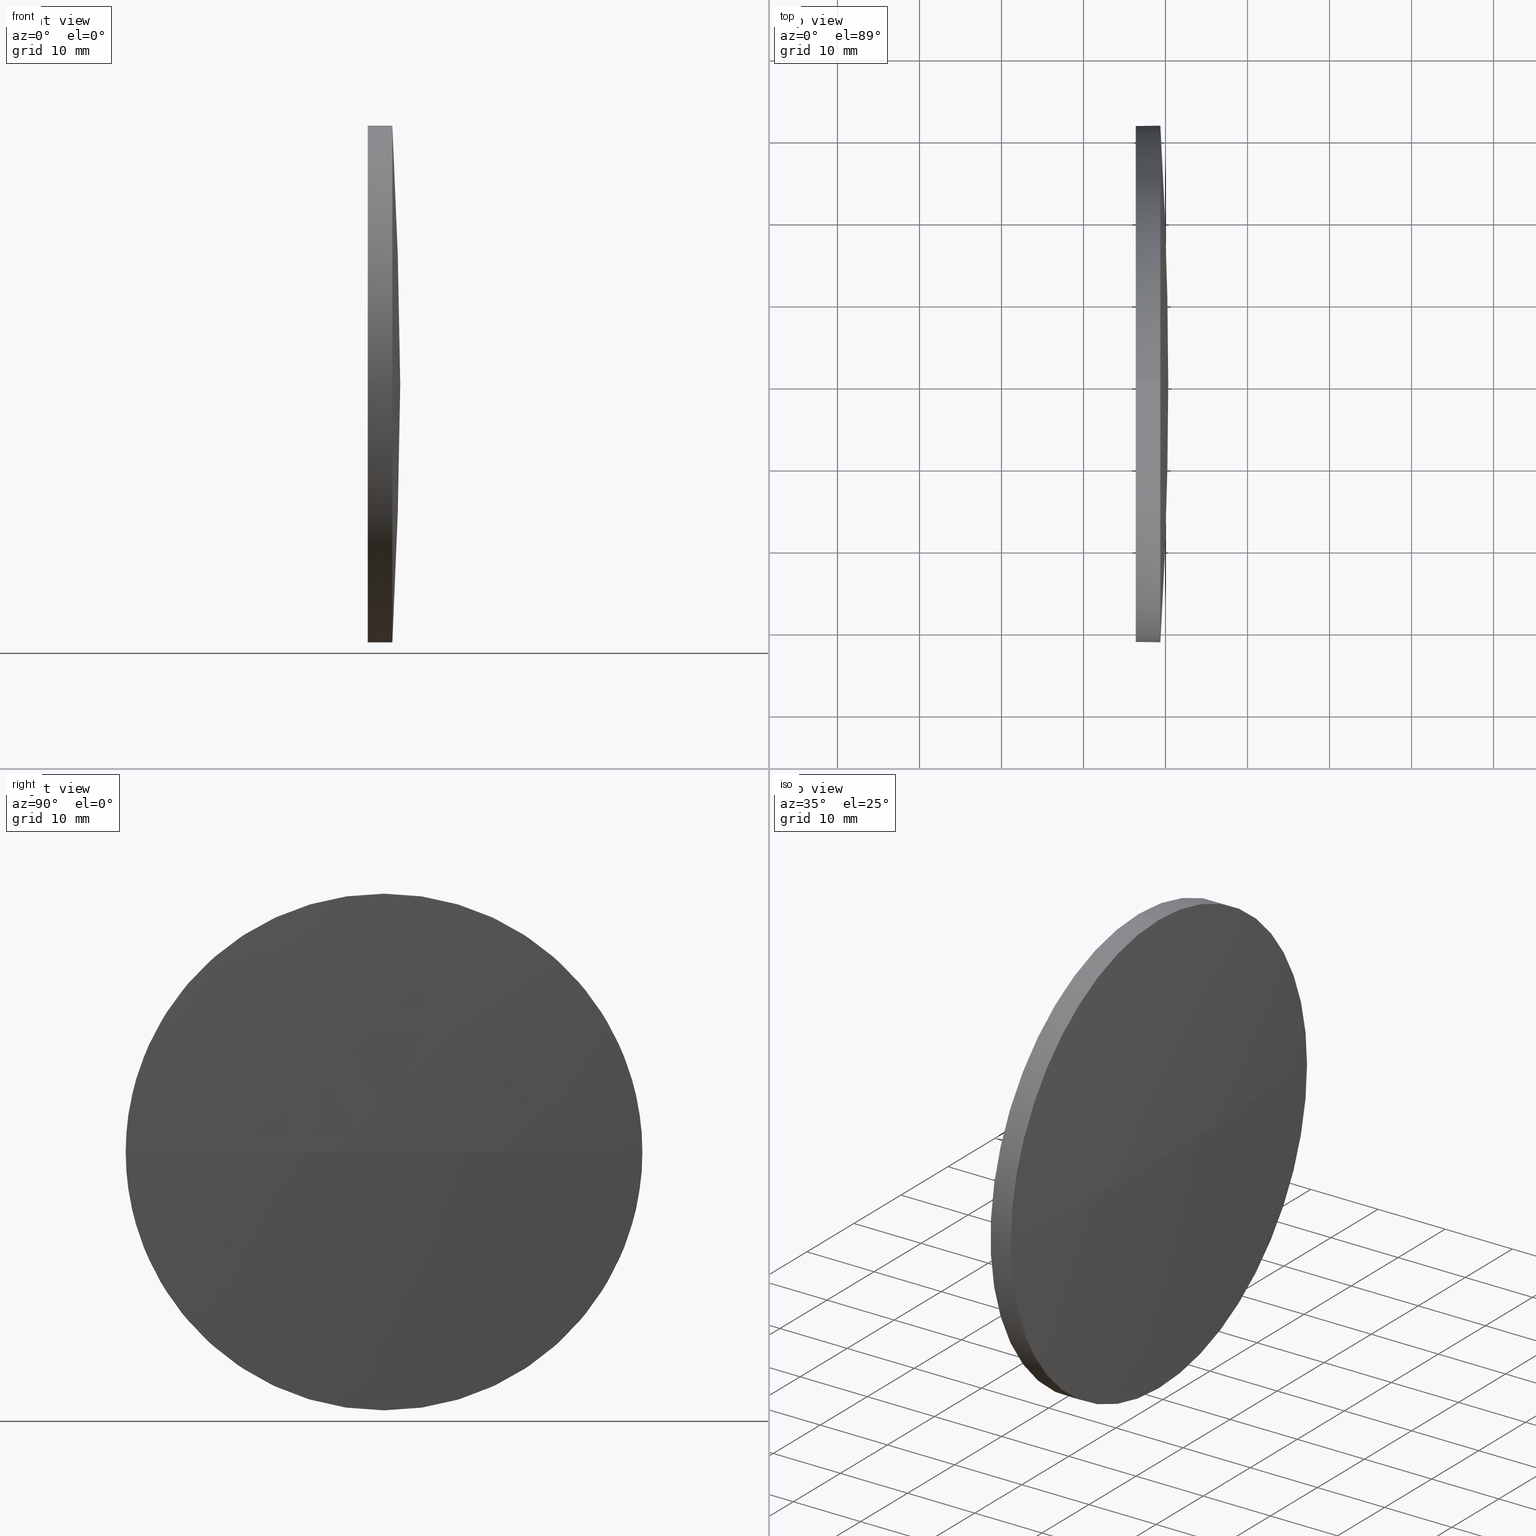
[diagram: canonical four-view strip — front | top / right | iso, engineering-drawing reading convention]
A machine part, canonical four-view strip (front | top / right | iso — engineering-drawing reading convention). The complete STEP part file that produces these views, byte-faithful:
ISO-10303-21;
HEADER;
FILE_DESCRIPTION (( 'STEP AP214' ),
    '1' );
FILE_NAME ('100077.STEP',
    '2019-05-06T05:21:30',
    ( '' ),
    ( '' ),
    'SwSTEP 2.0',
    'SolidWorks 2016',
    '' );
FILE_SCHEMA (( 'AUTOMOTIVE_DESIGN' ));
ENDSEC;

DATA;
#1 = AXIS2_PLACEMENT_3D ( 'NONE', #11, #15, #124 ) ;
#2 = FACE_OUTER_BOUND ( 'NONE', #70, .T. ) ;
#3 = EDGE_CURVE ( 'NONE', #57, #143, #108, .T. ) ;
#4 = UNCERTAINTY_MEASURE_WITH_UNIT (LENGTH_MEASURE( 1.000000000000000100E-005 ), #14, 'distance_accuracy_value', 'NONE');
#5 = CIRCLE ( 'NONE', #161, 31.50000000000000000 ) ;
#6 = ORIENTED_EDGE ( 'NONE', *, *, #107, .F. ) ;
#7 = FACE_OUTER_BOUND ( 'NONE', #62, .T. ) ;
#8 = AXIS2_PLACEMENT_3D ( 'NONE', #87, #116, #48 ) ;
#9 = DIRECTION ( 'NONE',  ( -1.000000000000000000, -0.0000000000000000000, -0.0000000000000000000 ) ) ;
#10 = ADVANCED_FACE ( 'NONE', ( #119 ), #22, .F. ) ;
#11 = CARTESIAN_POINT ( 'NONE',  ( 217.3311486608872700, 130.0418907599245100, 0.0000000000000000000 ) ) ;
#12 = AXIS2_PLACEMENT_3D ( 'NONE', #21, #59, #168 ) ;
#13 = DIRECTION ( 'NONE',  ( -1.000000000000000000, -0.0000000000000000000, -0.0000000000000000000 ) ) ;
#14 =( LENGTH_UNIT ( ) NAMED_UNIT ( * ) SI_UNIT ( .MILLI., .METRE. ) );
#15 = DIRECTION ( 'NONE',  ( -1.000000000000000000, -0.0000000000000000000, -0.0000000000000000000 ) ) ;
#16 = ORIENTED_EDGE ( 'NONE', *, *, #114, .F. ) ;
#17 = AXIS2_PLACEMENT_3D ( 'NONE', #37, #121, #94 ) ;
#18 = PRODUCT_RELATED_PRODUCT_CATEGORY ( 'part', '', ( #43 ) ) ;
#19 = FACE_OUTER_BOUND ( 'NONE', #24, .T. ) ;
#20 = EDGE_CURVE ( 'NONE', #152, #57, #134, .T. ) ;
#21 = CARTESIAN_POINT ( 'NONE',  ( 217.3311486608872700, 130.0418907599245100, 0.0000000000000000000 ) ) ;
#22 = PLANE ( 'NONE',  #132 ) ;
#23 = DIRECTION ( 'NONE',  ( 0.0000000000000000000, 0.0000000000000000000, -1.000000000000000000 ) ) ;
#24 = EDGE_LOOP ( 'NONE', ( #32, #144, #16, #126, #186 ) ) ;
#25 = DIRECTION ( 'NONE',  ( 0.0000000000000000000, -1.224646799147353200E-016, 1.000000000000000000 ) ) ;
#26 =( NAMED_UNIT ( * ) PLANE_ANGLE_UNIT ( ) SI_UNIT ( $, .RADIAN. ) );
#27 = CARTESIAN_POINT ( 'NONE',  ( 236.3701037227096700, 130.0418907599245100, 0.0000000000000000000 ) ) ;
#28 = FILL_AREA_STYLE_COLOUR ( '', #125 ) ;
#29 = CARTESIAN_POINT ( 'NONE',  ( 0.0000000000000000000, 0.0000000000000000000, 0.0000000000000000000 ) ) ;
#30 = CIRCLE ( 'NONE', #64, 31.50000000000000000 ) ;
#31 = ORIENTED_EDGE ( 'NONE', *, *, #20, .F. ) ;
#32 = ORIENTED_EDGE ( 'NONE', *, *, #107, .T. ) ;
#33 = AXIS2_PLACEMENT_3D ( 'NONE', #61, #92, #122 ) ;
#34 = VERTEX_POINT ( 'NONE', #166 ) ;
#35 = UNCERTAINTY_MEASURE_WITH_UNIT (LENGTH_MEASURE( 1.000000000000000100E-005 ), #106, 'distance_accuracy_value', 'NONE');
#36 = CARTESIAN_POINT ( 'NONE',  ( 239.3701037227097000, 161.5418907599244300, 3.857637417314121700E-015 ) ) ;
#37 = CARTESIAN_POINT ( 'NONE',  ( 239.3701037227096700, 130.0418907599245100, 0.0000000000000000000 ) ) ;
#38 = EDGE_CURVE ( 'NONE', #34, #57, #123, .T. ) ;
#39 = ORIENTED_EDGE ( 'NONE', *, *, #138, .T. ) ;
#40 =( NAMED_UNIT ( * ) SI_UNIT ( $, .STERADIAN. ) SOLID_ANGLE_UNIT ( ) );
#41 = PRODUCT_CONTEXT ( 'NONE', #89, 'mechanical' ) ;
#42 =( NAMED_UNIT ( * ) SI_UNIT ( $, .STERADIAN. ) SOLID_ANGLE_UNIT ( ) );
#43 = PRODUCT ( '100077', '100077', '', ( #41 ) ) ;
#44 = ORIENTED_EDGE ( 'NONE', *, *, #69, .T. ) ;
#45 = MECHANICAL_DESIGN_GEOMETRIC_PRESENTATION_REPRESENTATION (  '', ( #145 ), #148 ) ;
#46 = CARTESIAN_POINT ( 'NONE',  ( 239.3701037227097000, 98.54189075992485400, 0.0000000000000000000 ) ) ;
#47 = ADVANCED_FACE ( 'NONE', ( #19 ), #182, .T. ) ;
#48 = DIRECTION ( 'NONE',  ( 0.0000000000000000000, -1.000000000000000000, 0.0000000000000000000 ) ) ;
#49 = PRODUCT_DEFINITION ( 'δ֪', '', #174, #83 ) ;
#50 = FILL_AREA_STYLE ('',( #157 ) ) ;
#51 =( NAMED_UNIT ( * ) SI_UNIT ( $, .STERADIAN. ) SOLID_ANGLE_UNIT ( ) );
#52 = PRESENTATION_STYLE_ASSIGNMENT (( #179 ) ) ;
#53 = CARTESIAN_POINT ( 'NONE',  ( -276.9467712772858500, 130.0418907599247700, 0.0000000000000000000 ) ) ;
#54 = SURFACE_STYLE_FILL_AREA ( #50 ) ;
#55 = UNCERTAINTY_MEASURE_WITH_UNIT (LENGTH_MEASURE( 1.000000000000000100E-005 ), #105, 'distance_accuracy_value', 'NONE');
#56 =( NAMED_UNIT ( * ) PLANE_ANGLE_UNIT ( ) SI_UNIT ( $, .RADIAN. ) );
#57 = VERTEX_POINT ( 'NONE', #46 ) ;
#58 = ADVANCED_FACE ( 'NONE', ( #2 ), #175, .T. ) ;
#59 = DIRECTION ( 'NONE',  ( -1.000000000000000000, -0.0000000000000000000, -0.0000000000000000000 ) ) ;
#60 = AXIS2_PLACEMENT_3D ( 'NONE', #29, #158, #172 ) ;
#61 = CARTESIAN_POINT ( 'NONE',  ( -276.9467712772858500, 130.0418907599247700, 0.0000000000000000000 ) ) ;
#62 = EDGE_LOOP ( 'NONE', ( #162, #95, #147, #176, #97 ) ) ;
#63 = CARTESIAN_POINT ( 'NONE',  ( 239.3701037227096700, 130.0418907599245100, 0.0000000000000000000 ) ) ;
#64 = AXIS2_PLACEMENT_3D ( 'NONE', #27, #137, #153 ) ;
#65 =( NAMED_UNIT ( * ) PLANE_ANGLE_UNIT ( ) SI_UNIT ( $, .RADIAN. ) );
#66 = DIRECTION ( 'NONE',  ( -1.000000000000000000, -0.0000000000000000000, -0.0000000000000000000 ) ) ;
#67 = SPHERICAL_SURFACE ( 'NONE', #33, 517.2768749999955800 ) ;
#68 = ORIENTED_EDGE ( 'NONE', *, *, #114, .T. ) ;
#69 = EDGE_CURVE ( 'NONE', #152, #84, #117, .T. ) ;
#70 = EDGE_LOOP ( 'NONE', ( #80, #91, #104, #6 ) ) ;
#71 = VECTOR ( 'NONE', #13, 1000.000000000000000 ) ;
#72 = DIRECTION ( 'NONE',  ( 0.0000000000000000000, 0.0000000000000000000, 1.000000000000000000 ) ) ;
#73 = VERTEX_POINT ( 'NONE', #102 ) ;
#74 = CARTESIAN_POINT ( 'NONE',  ( 217.3311486608872700, 130.0418907599245100, 31.50000000000000000 ) ) ;
#75 = APPLICATION_PROTOCOL_DEFINITION ( 'draft international standard', 'automotive_design', 1998, #89 ) ;
#76 = DIRECTION ( 'NONE',  ( 0.0000000000000000000, 0.0000000000000000000, 1.000000000000000000 ) ) ;
#77 = CARTESIAN_POINT ( 'NONE',  ( 240.3301037227096800, 130.0418907599247400, 0.0000000000000000000 ) ) ;
#78 = SURFACE_SIDE_STYLE ('',( #54 ) ) ;
#79 = APPLICATION_PROTOCOL_DEFINITION ( 'draft international standard', 'automotive_design', 1998, #160 ) ;
#80 = ORIENTED_EDGE ( 'NONE', *, *, #69, .F. ) ;
#81 = VECTOR ( 'NONE', #66, 1000.000000000000000 ) ;
#82 = AXIS2_PLACEMENT_3D ( 'NONE', #63, #180, #76 ) ;
#83 = PRODUCT_DEFINITION_CONTEXT ( 'detailed design', #160, 'design' ) ;
#84 = VERTEX_POINT ( 'NONE', #36 ) ;
#85 = LINE ( 'NONE', #74, #81 ) ;
#86 = EDGE_CURVE ( 'NONE', #143, #183, #85, .T. ) ;
#87 = CARTESIAN_POINT ( 'NONE',  ( -276.9467712772858500, 130.0418907599247700, 0.0000000000000000000 ) ) ;
#88 = DIRECTION ( 'NONE',  ( -1.000000000000000000, -0.0000000000000000000, -0.0000000000000000000 ) ) ;
#89 = APPLICATION_CONTEXT ( 'automotive_design' ) ;
#90 = DIRECTION ( 'NONE',  ( 0.0000000000000000000, -1.000000000000000000, -1.224646799147353200E-016 ) ) ;
#91 = ORIENTED_EDGE ( 'NONE', *, *, #20, .T. ) ;
#92 = DIRECTION ( 'NONE',  ( 0.0000000000000000000, 0.0000000000000000000, 1.000000000000000000 ) ) ;
#93 = AXIS2_PLACEMENT_3D ( 'NONE', #164, #9, #72 ) ;
#94 = DIRECTION ( 'NONE',  ( 0.0000000000000000000, 0.0000000000000000000, 1.000000000000000000 ) ) ;
#95 = ORIENTED_EDGE ( 'NONE', *, *, #38, .T. ) ;
#96 = SHAPE_DEFINITION_REPRESENTATION ( #139, #163 ) ;
#97 = ORIENTED_EDGE ( 'NONE', *, *, #138, .F. ) ;
#98 = ORIENTED_EDGE ( 'NONE', *, *, #3, .F. ) ;
#99 = AXIS2_PLACEMENT_3D ( 'NONE', #53, #25, #90 ) ;
#100 = DIRECTION ( 'NONE',  ( 1.000000000000000000, 0.0000000000000000000, 0.0000000000000000000 ) ) ;
#101 = CYLINDRICAL_SURFACE ( 'NONE', #1, 31.50000000000000000 ) ;
#102 = CARTESIAN_POINT ( 'NONE',  ( 236.3701037227096700, 130.0418907599245100, -31.50000000000000000 ) ) ;
#103 = ADVANCED_FACE ( 'NONE', ( #7 ), #101, .T. ) ;
#104 = ORIENTED_EDGE ( 'NONE', *, *, #38, .F. ) ;
#105 =( LENGTH_UNIT ( ) NAMED_UNIT ( * ) SI_UNIT ( .MILLI., .METRE. ) );
#106 =( LENGTH_UNIT ( ) NAMED_UNIT ( * ) SI_UNIT ( .MILLI., .METRE. ) );
#107 = EDGE_CURVE ( 'NONE', #84, #34, #109, .T. ) ;
#108 = CIRCLE ( 'NONE', #93, 31.50000000000000000 ) ;
#109 = CIRCLE ( 'NONE', #82, 31.50000000000000000 ) ;
#110 = EDGE_CURVE ( 'NONE', #143, #84, #155, .T. ) ;
#111 = SURFACE_STYLE_FILL_AREA ( #140 ) ;
#112 = FACE_OUTER_BOUND ( 'NONE', #178, .T. ) ;
#113 = ORIENTED_EDGE ( 'NONE', *, *, #110, .F. ) ;
#114 = EDGE_CURVE ( 'NONE', #183, #73, #30, .T. ) ;
#115 = ADVANCED_FACE ( 'NONE', ( #112 ), #67, .T. ) ;
#116 = DIRECTION ( 'NONE',  ( 0.0000000000000000000, 0.0000000000000000000, 1.000000000000000000 ) ) ;
#117 = CIRCLE ( 'NONE', #99, 517.2768749999955800 ) ;
#118 = CARTESIAN_POINT ( 'NONE',  ( 236.3701037227096700, 130.0418907599245100, 0.0000000000000000000 ) ) ;
#119 = FACE_OUTER_BOUND ( 'NONE', #130, .T. ) ;
#120 = SURFACE_SIDE_STYLE ('',( #111 ) ) ;
#121 = DIRECTION ( 'NONE',  ( -1.000000000000000000, -0.0000000000000000000, -0.0000000000000000000 ) ) ;
#122 = DIRECTION ( 'NONE',  ( 0.0000000000000000000, -1.000000000000000000, 0.0000000000000000000 ) ) ;
#123 = CIRCLE ( 'NONE', #128, 31.50000000000000000 ) ;
#124 = DIRECTION ( 'NONE',  ( 0.0000000000000000000, 0.0000000000000000000, 1.000000000000000000 ) ) ;
#125 = COLOUR_RGB ( '',1.000000000000000000, 1.000000000000000000, 1.000000000000000000 ) ;
#126 = ORIENTED_EDGE ( 'NONE', *, *, #86, .F. ) ;
#127 = MANIFOLD_SOLID_BREP ( '��ת1', #173 ) ;
#128 = AXIS2_PLACEMENT_3D ( 'NONE', #131, #88, #150 ) ;
#129 = EDGE_CURVE ( 'NONE', #34, #73, #142, .T. ) ;
#130 = EDGE_LOOP ( 'NONE', ( #68, #39 ) ) ;
#131 = CARTESIAN_POINT ( 'NONE',  ( 239.3701037227096700, 130.0418907599245100, 0.0000000000000000000 ) ) ;
#132 = AXIS2_PLACEMENT_3D ( 'NONE', #118, #100, #23 ) ;
#133 = DIRECTION ( 'NONE',  ( -1.000000000000000000, 0.0000000000000000000, 0.0000000000000000000 ) ) ;
#134 = CIRCLE ( 'NONE', #177, 517.2768749999955800 ) ;
#135 = DIRECTION ( 'NONE',  ( 0.0000000000000000000, 0.0000000000000000000, -1.000000000000000000 ) ) ;
#136 = CARTESIAN_POINT ( 'NONE',  ( 217.3311486608872700, 130.0418907599245100, -31.50000000000000000 ) ) ;
#137 = DIRECTION ( 'NONE',  ( -1.000000000000000000, -0.0000000000000000000, -0.0000000000000000000 ) ) ;
#138 = EDGE_CURVE ( 'NONE', #73, #183, #5, .T. ) ;
#139 = PRODUCT_DEFINITION_SHAPE ( 'NONE', 'NONE',  #49 ) ;
#140 = FILL_AREA_STYLE ('',( #28 ) ) ;
#141 = DIRECTION ( 'NONE',  ( -1.000000000000000000, -0.0000000000000000000, -0.0000000000000000000 ) ) ;
#142 = LINE ( 'NONE', #136, #71 ) ;
#143 = VERTEX_POINT ( 'NONE', #171 ) ;
#144 = ORIENTED_EDGE ( 'NONE', *, *, #129, .T. ) ;
#145 = STYLED_ITEM ( 'NONE', ( #52 ), #127 ) ;
#146 = PRESENTATION_LAYER_ASSIGNMENT (  '', '', ( #170 ) ) ;
#147 = ORIENTED_EDGE ( 'NONE', *, *, #3, .T. ) ;
#148 =( GEOMETRIC_REPRESENTATION_CONTEXT ( 3 ) GLOBAL_UNCERTAINTY_ASSIGNED_CONTEXT ( ( #35 ) ) GLOBAL_UNIT_ASSIGNED_CONTEXT ( ( #106, #65, #40 ) ) REPRESENTATION_CONTEXT ( 'NONE', 'WORKASPACE' ) );
#149 = CARTESIAN_POINT ( 'NONE',  ( -276.9467712772858500, 130.0418907599247700, 0.0000000000000000000 ) ) ;
#150 = DIRECTION ( 'NONE',  ( 0.0000000000000000000, 0.0000000000000000000, 1.000000000000000000 ) ) ;
#151 = COLOUR_RGB ( '',1.000000000000000000, 1.000000000000000000, 1.000000000000000000 ) ;
#152 = VERTEX_POINT ( 'NONE', #77 ) ;
#153 = DIRECTION ( 'NONE',  ( 0.0000000000000000000, 0.0000000000000000000, 1.000000000000000000 ) ) ;
#154 = CARTESIAN_POINT ( 'NONE',  ( 236.3701037227096700, 130.0418907599245100, 0.0000000000000000000 ) ) ;
#155 = CIRCLE ( 'NONE', #17, 31.50000000000000000 ) ;
#156 = PRESENTATION_LAYER_ASSIGNMENT (  '', '', ( #145 ) ) ;
#157 = FILL_AREA_STYLE_COLOUR ( '', #151 ) ;
#158 = DIRECTION ( 'NONE',  ( 0.0000000000000000000, 0.0000000000000000000, 1.000000000000000000 ) ) ;
#159 = PRESENTATION_STYLE_ASSIGNMENT (( #185 ) ) ;
#160 = APPLICATION_CONTEXT ( 'automotive_design' ) ;
#161 = AXIS2_PLACEMENT_3D ( 'NONE', #154, #141, #169 ) ;
#162 = ORIENTED_EDGE ( 'NONE', *, *, #129, .F. ) ;
#163 = ADVANCED_BREP_SHAPE_REPRESENTATION ( '100077', ( #127, #60 ), #165 ) ;
#164 = CARTESIAN_POINT ( 'NONE',  ( 239.3701037227096700, 130.0418907599245100, 0.0000000000000000000 ) ) ;
#165 =( GEOMETRIC_REPRESENTATION_CONTEXT ( 3 ) GLOBAL_UNCERTAINTY_ASSIGNED_CONTEXT ( ( #4 ) ) GLOBAL_UNIT_ASSIGNED_CONTEXT ( ( #14, #26, #51 ) ) REPRESENTATION_CONTEXT ( 'NONE', 'WORKASPACE' ) );
#166 = CARTESIAN_POINT ( 'NONE',  ( 239.3701037227096700, 130.0418907599245100, -31.50000000000000000 ) ) ;
#167 = MECHANICAL_DESIGN_GEOMETRIC_PRESENTATION_REPRESENTATION (  '', ( #170 ), #184 ) ;
#168 = DIRECTION ( 'NONE',  ( 0.0000000000000000000, 0.0000000000000000000, 1.000000000000000000 ) ) ;
#169 = DIRECTION ( 'NONE',  ( 0.0000000000000000000, 0.0000000000000000000, 1.000000000000000000 ) ) ;
#170 = STYLED_ITEM ( 'NONE', ( #159 ), #163 ) ;
#171 = CARTESIAN_POINT ( 'NONE',  ( 239.3701037227096700, 130.0418907599245100, 31.50000000000000000 ) ) ;
#172 = DIRECTION ( 'NONE',  ( 1.000000000000000000, 0.0000000000000000000, 0.0000000000000000000 ) ) ;
#173 = CLOSED_SHELL ( 'NONE', ( #47, #115, #58, #103, #10 ) ) ;
#174 = PRODUCT_DEFINITION_FORMATION_WITH_SPECIFIED_SOURCE ( '�κ�', '', #43, .NOT_KNOWN. ) ;
#175 = SPHERICAL_SURFACE ( 'NONE', #8, 517.2768749999955800 ) ;
#176 = ORIENTED_EDGE ( 'NONE', *, *, #86, .T. ) ;
#177 = AXIS2_PLACEMENT_3D ( 'NONE', #149, #135, #133 ) ;
#178 = EDGE_LOOP ( 'NONE', ( #31, #44, #113, #98 ) ) ;
#179 = SURFACE_STYLE_USAGE ( .BOTH. , #120 ) ;
#180 = DIRECTION ( 'NONE',  ( -1.000000000000000000, -0.0000000000000000000, -0.0000000000000000000 ) ) ;
#181 = CARTESIAN_POINT ( 'NONE',  ( 236.3701037227096700, 130.0418907599245100, 31.50000000000000000 ) ) ;
#182 = CYLINDRICAL_SURFACE ( 'NONE', #12, 31.50000000000000000 ) ;
#183 = VERTEX_POINT ( 'NONE', #181 ) ;
#184 =( GEOMETRIC_REPRESENTATION_CONTEXT ( 3 ) GLOBAL_UNCERTAINTY_ASSIGNED_CONTEXT ( ( #55 ) ) GLOBAL_UNIT_ASSIGNED_CONTEXT ( ( #105, #56, #42 ) ) REPRESENTATION_CONTEXT ( 'NONE', 'WORKASPACE' ) );
#185 = SURFACE_STYLE_USAGE ( .BOTH. , #78 ) ;
#186 = ORIENTED_EDGE ( 'NONE', *, *, #110, .T. ) ;
ENDSEC;
END-ISO-10303-21;
